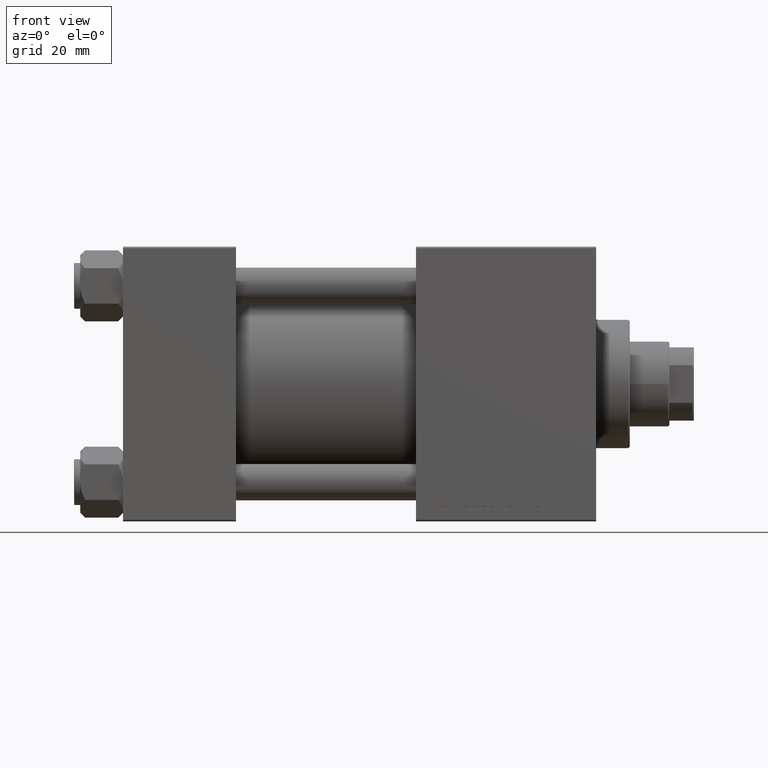
[diagram: clean part render]
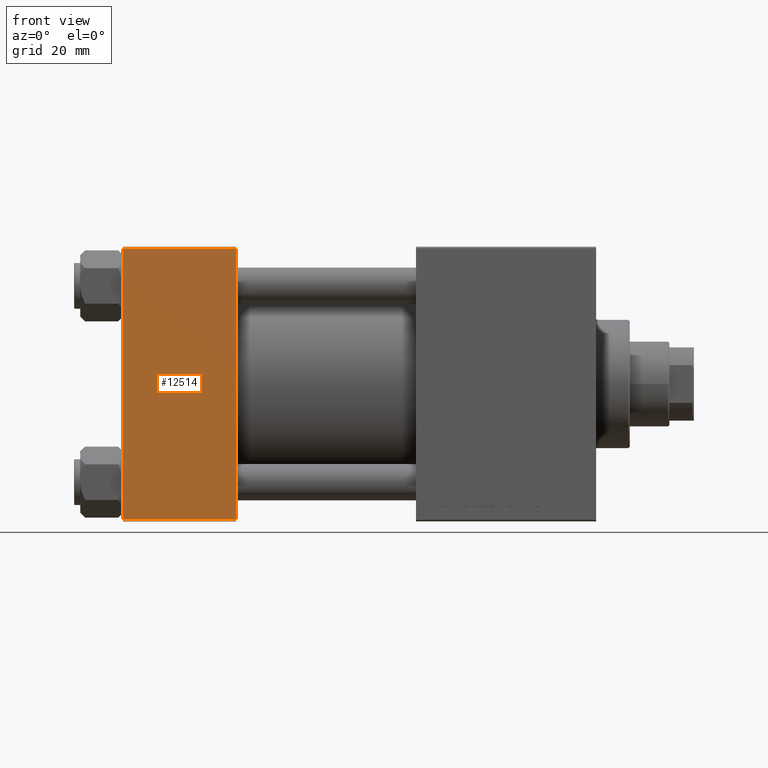
[diagram: same view with one face highlighted and labeled with its STEP entity id]
A machine part, front view. The second image highlights one B-rep face of the part: STEP entity #12514.
In plain terms, the highlighted planar face has unit normal (0, 1, 0).
Its self-contained STEP definition (entity closure, byte-faithful):
#775 = VECTOR ( 'NONE', #10741, 1000.000000000000000 ) ;
#1128 = ORIENTED_EDGE ( 'NONE', *, *, #38120, .T. ) ;
#1509 = DIRECTION ( 'NONE',  ( 0.000000000000000000, 7.709882115452476934E-17, -1.000000000000000000 ) ) ;
#1969 = CARTESIAN_POINT ( 'NONE',  ( 37.00000000000000000, -45.00000000000000711, 44.49999999999997158 ) ) ;
#9407 = CARTESIAN_POINT ( 'NONE',  ( 0.000000000000000000, -45.00000000000000711, 45.00000000000000000 ) ) ;
#10741 = DIRECTION ( 'NONE',  ( 1.000000000000000000, 0.000000000000000000, 0.000000000000000000 ) ) ;
#11115 = CARTESIAN_POINT ( 'NONE',  ( 37.00000000000000000, -45.00000000000000000, -44.49999999999995737 ) ) ;
#12450 = VECTOR ( 'NONE', #25019, 1000.000000000000000 ) ;
#12514 = ADVANCED_FACE ( 'NONE', ( #40236 ), #24967, .F. ) ;
#13077 = VECTOR ( 'NONE', #1509, 1000.000000000000000 ) ;
#13298 = LINE ( 'NONE', #21218, #48052 ) ;
#18873 = VERTEX_POINT ( 'NONE', #11115 ) ;
#19660 = VERTEX_POINT ( 'NONE', #41344 ) ;
#21218 = CARTESIAN_POINT ( 'NONE',  ( 37.00000000000000000, -45.00000000000000711, 44.49999999999997158 ) ) ;
#24967 = PLANE ( 'NONE',  #38776 ) ;
#25019 = DIRECTION ( 'NONE',  ( 0.000000000000000000, 7.709882115452476934E-17, -1.000000000000000000 ) ) ;
#28405 = VERTEX_POINT ( 'NONE', #45740 ) ;
#28790 = DIRECTION ( 'NONE',  ( -0.000000000000000000, 1.000000000000000000, 7.709882115452478166E-17 ) ) ;
#28842 = CARTESIAN_POINT ( 'NONE',  ( 37.00000000000000000, -45.00000000000000711, 45.00000000000000000 ) ) ;
#28977 = ORIENTED_EDGE ( 'NONE', *, *, #30194, .T. ) ;
#29809 = EDGE_CURVE ( 'NONE', #31564, #28405, #13298, .T. ) ;
#30194 = EDGE_CURVE ( 'NONE', #28405, #19660, #40990, .T. ) ;
#30679 = ORIENTED_EDGE ( 'NONE', *, *, #29809, .T. ) ;
#31564 = VERTEX_POINT ( 'NONE', #1969 ) ;
#32651 = LINE ( 'NONE', #28842, #12450 ) ;
#32723 = ORIENTED_EDGE ( 'NONE', *, *, #35220, .F. ) ;
#34752 = EDGE_LOOP ( 'NONE', ( #28977, #1128, #32723, #30679 ) ) ;
#35220 = EDGE_CURVE ( 'NONE', #31564, #18873, #32651, .T. ) ;
#36429 = DIRECTION ( 'NONE',  ( 0.000000000000000000, -7.709882115452478166E-17, 1.000000000000000000 ) ) ;
#37753 = CARTESIAN_POINT ( 'NONE',  ( 37.00000000000000000, -45.00000000000000000, -44.49999999999998579 ) ) ;
#38120 = EDGE_CURVE ( 'NONE', #19660, #18873, #45632, .T. ) ;
#38776 = AXIS2_PLACEMENT_3D ( 'NONE', #44830, #28790, #36429 ) ;
#40236 = FACE_OUTER_BOUND ( 'NONE', #34752, .T. ) ;
#40990 = LINE ( 'NONE', #9407, #13077 ) ;
#41344 = CARTESIAN_POINT ( 'NONE',  ( 0.000000000000000000, -45.00000000000000000, -44.49999999999995737 ) ) ;
#44830 = CARTESIAN_POINT ( 'NONE',  ( 37.00000000000000000, -45.00000000000000711, 45.00000000000000000 ) ) ;
#44883 = DIRECTION ( 'NONE',  ( -1.000000000000000000, 0.000000000000000000, 0.000000000000000000 ) ) ;
#45632 = LINE ( 'NONE', #37753, #775 ) ;
#45740 = CARTESIAN_POINT ( 'NONE',  ( 0.000000000000000000, -45.00000000000000711, 44.49999999999997158 ) ) ;
#48052 = VECTOR ( 'NONE', #44883, 1000.000000000000000 ) ;